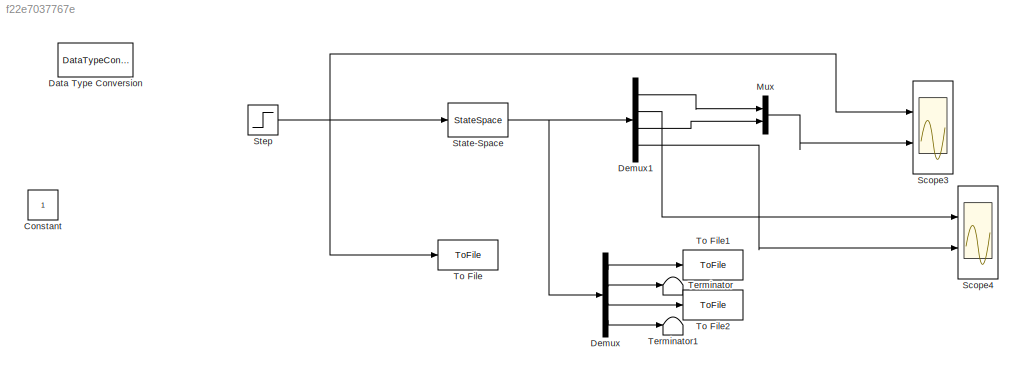
MODEL slx_f22e7037767e
KIND model
CONFIG AbsTol = auto
CONFIG EnableMultiTasking = off
CONFIG FixedStep = auto
CONFIG MaxStep = auto
CONFIG MinStep = auto
CONFIG RelTol = 1e-3
CONFIG SampleTimeConstraint = Unconstrained
CONFIG SolverName = ode23
CONFIG StartTime = 0.0
CONFIG StopTime = 10.0
BLOCK [Constant] Constant
BLOCK [DataTypeConversion] Data Type Conversion
  RndMeth = Floor
  SaturateOnIntegerOverflow = off
BLOCK [Demux] Demux
  Ports = [1, 4]
BLOCK [Demux] Demux1
  Ports = [1, 4]
BLOCK [Mux] Mux
  DisplayOption = bar
  Inputs = 2
  Ports = [2, 1]
BLOCK [Scope] Scope3
  Floating = off
  NumInputPorts = 2
  Ports = [2]
  ScopeSpecificationString = Simulink.scopes.TimeScopeBlockCfg('CurrentConfiguration', extmgr.ConfigurationSet(extmgr.Configuration('Core','General UI',true),extmgr.Configuration('Core','Source UI',true),extmgr.Configuration('Sources','WiredSimulink',true,'DataLoggingVariableName','ScopeData1'),extmgr.Configuration('Visuals','Time Domain',true,'SerializedDisplays',{struct('MinYLimReal','-0.034','MaxYLimReal','0.11793','YLabel...<+1438ch>
BLOCK [Scope] Scope4
  Floating = off
  NumInputPorts = 2
  Ports = [2]
  ScopeSpecificationString = Simulink.scopes.TimeScopeBlockCfg('CurrentConfiguration', extmgr.ConfigurationSet(extmgr.Configuration('Core','General UI',true),extmgr.Configuration('Core','Source UI',true),extmgr.Configuration('Sources','WiredSimulink',true),extmgr.Configuration('Visuals','Time Domain',true,'SerializedDisplays',{struct('MinYLimReal','-0.00416','MaxYLimReal','0.03741','YLabelReal','','MinYLimMag','0.00000','MaxY...<+1378ch>
BLOCK [StateSpace] State-Space
  A = [0 1 0 0;-k/M1 -g*f k/M1 0;0 0 0 1;k/M2 0 -k/M2 -g*f]
  B = [0;1/M1;0;0]
  C = [1 0 0 0; 0 1 0 0;0 0 1 0;0 0 0 1]
  D = [0;0;0;0]
  InitialCondition = 0
  Ports = [1, 1]
BLOCK [Step] Step
  SampleTime = 0
BLOCK [Terminator] Terminator
BLOCK [Terminator] Terminator1
BLOCK [ToFile] To File
  Filename = F.mat
  Ports = [1]
  SaveFormat = Timeseries
BLOCK [ToFile] To File1
  Filename = x1_ss.mat
  Ports = [1]
  SaveFormat = Timeseries
BLOCK [ToFile] To File2
  Filename = x2_ss.mat
  Ports = [1]
  SaveFormat = Timeseries
LINE Demux1:1 -> Mux:1
LINE Demux1:2 -> Scope4:1
LINE Demux1:3 -> Mux:2
LINE Demux1:4 -> Scope4:2
LINE Demux:1 -> To File1:1
LINE Demux:2 -> Terminator:1
LINE Demux:3 -> To File2:1
LINE Demux:4 -> Terminator1:1
LINE Mux:1 -> Scope3:2
NET State-Space:1 -> Demux1:1, Demux:1
NET Step:1 -> Scope3:1, State-Space:1, To File:1
note: NET lines group one-source signal fan-out (src -> all destinations, sorted); 1:1 wires keep LINE
